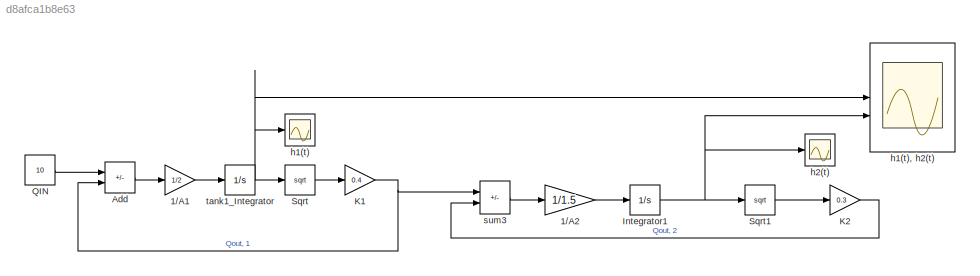
MODEL slx_d8afca1b8e63
KIND model
CONFIG AbsTol = auto
CONFIG EnableMultiTasking = off
CONFIG FixedStep = auto
CONFIG MaxStep = auto
CONFIG MinStep = auto
CONFIG RelTol = 1e-3
CONFIG SampleTimeConstraint = Unconstrained
CONFIG SolverName = VariableStepAuto
CONFIG StartTime = 0.0
CONFIG StopTime = 1000.0
BLOCK [Gain] 1//A1
  Gain = 1/2
BLOCK [Gain] 1//A2
  Gain = 1/1.5
BLOCK [Sum] Add
  IconShape = rectangular
  Inputs = +-
BLOCK [Integrator] Integrator1
  InitialCondition = 0.5
BLOCK [Gain] K1
  Gain = 0.4
BLOCK [Gain] K2
  Gain = 0.3
BLOCK [Constant] QIN
  Value = 10
BLOCK [Sqrt] Sqrt
BLOCK [Sqrt] Sqrt1
BLOCK [Scope] h1(t)
  Floating = off
  NumInputPorts = 1
  ScopeSpecificationString = Simulink.scopes.TimeScopeBlockCfg('CurrentConfiguration', extmgr.ConfigurationSet(extmgr.Configuration('Core','General UI',true),extmgr.Configuration('Core','Source UI',true),extmgr.Configuration('Sources','WiredSimulink',true,'DataLoggingVariableName','ScopeData2'),extmgr.Configuration('Visuals','Time Domain',true,'SerializedDisplays',{struct('MinYLimReal','-76.50656','MaxYLimReal','693.55901','Y...<+1503ch>
BLOCK [Scope] h1(t), h2(t)
  Floating = off
  NumInputPorts = 2
  ScopeSpecificationString = Simulink.scopes.TimeScopeBlockCfg('CurrentConfiguration', extmgr.ConfigurationSet(extmgr.Configuration('Core','General UI',true),extmgr.Configuration('Core','Source UI',true),extmgr.Configuration('Sources','WiredSimulink',true,'DataLoggingVariableName','ScopeData1'),extmgr.Configuration('Visuals','Time Domain',true,'SerializedDisplays',{struct('MinYLimReal','-124.75504','MaxYLimReal','1127.7954','...<+1622ch>
BLOCK [Scope] h2(t)
  Floating = off
  NumInputPorts = 1
  ScopeSpecificationString = Simulink.scopes.TimeScopeBlockCfg('CurrentConfiguration', extmgr.ConfigurationSet(extmgr.Configuration('Core','General UI',true),extmgr.Configuration('Core','Source UI',true),extmgr.Configuration('Sources','WiredSimulink',true),extmgr.Configuration('Visuals','Time Domain',true,'SerializedDisplays',{struct('MinYLimReal','0.41675','MaxYLimReal','1.24925','YLabelReal','','MinYLimMag','0.41675','MaxYL...<+1418ch>
BLOCK [Sum] sum3
  IconShape = rectangular
  Inputs = +-
BLOCK [Integrator] tank1_Integrator
  InitialCondition = 0.5
LINE 1//A1:1 -> tank1_Integrator:1
LINE 1//A2:1 -> Integrator1:1
LINE Add:1 -> 1//A1:1
NET Integrator1:1 -> Sqrt1:1, h1(t), h2(t):2, h2(t):1
NET K1:1 -> Add:2, sum3:1
LINE K2:1 -> sum3:2
LINE QIN:1 -> Add:1
LINE Sqrt1:1 -> K2:1
LINE Sqrt:1 -> K1:1
LINE sum3:1 -> 1//A2:1
NET tank1_Integrator:1 -> Sqrt:1, h1(t), h2(t):1, h1(t):1
note: NET lines group one-source signal fan-out (src -> all destinations, sorted); 1:1 wires keep LINE
